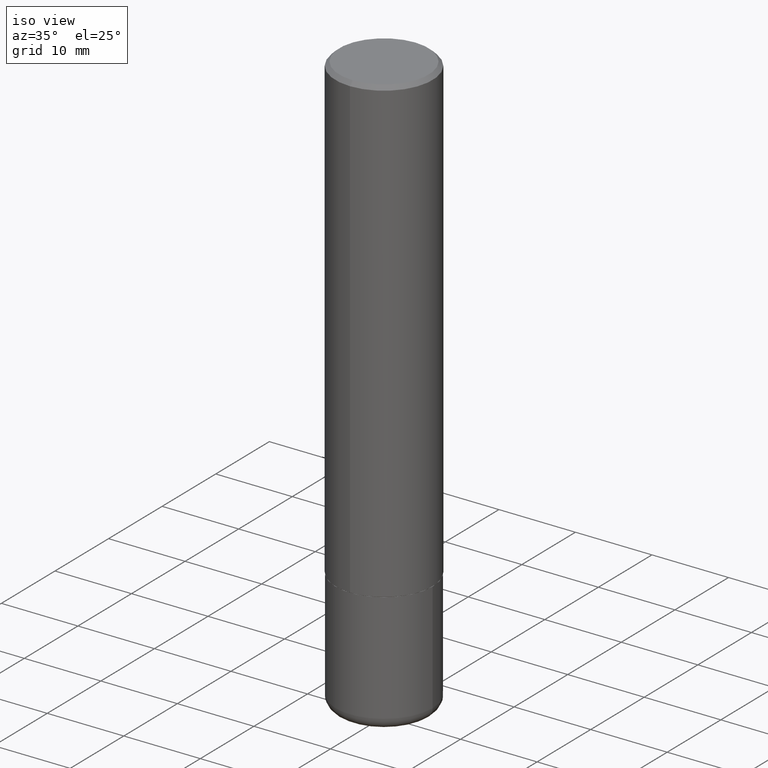
[diagram: clean part render]
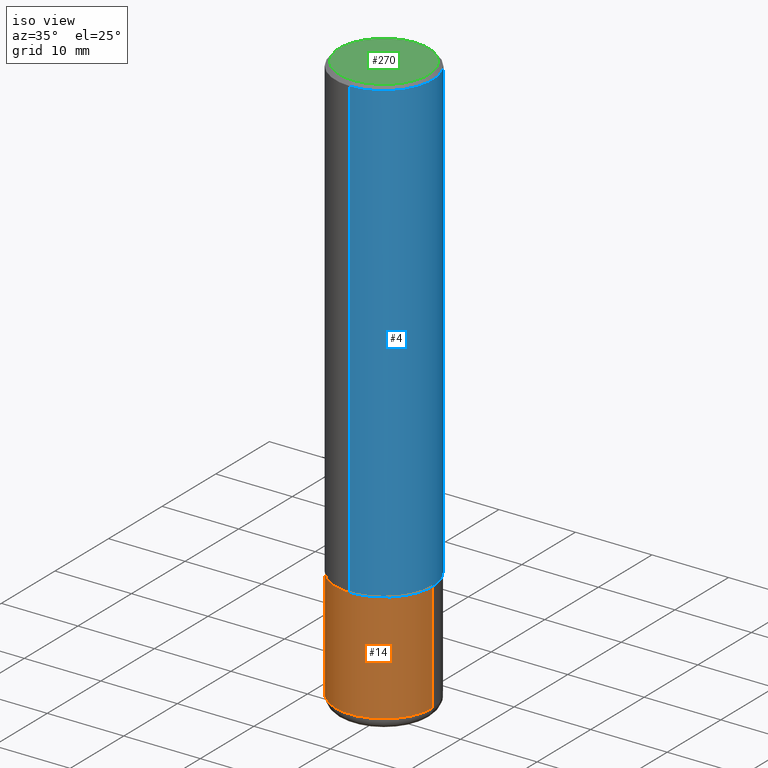
[diagram: same view with three faces highlighted in distinct colors, each labeled with its STEP entity id]
A machine part, iso view with three faces highlighted in distinct colors.
Their STEP definitions:

[orange] entity #14 — the highlighted cylindrical surface (partial cylindrical patch) has radius 6.35 mm, axis along (-0, 0, 1).
#2 = DIRECTION ( 'NONE',  ( -2.445468806185136597E-29, 3.491481338843145583E-15, 1.000000000000000000 ) ) ;
#14 = ADVANCED_FACE ( 'NONE', ( #229 ), #253, .T. ) ;
#62 = VECTOR ( 'NONE', #131, 39.37007874015748143 ) ;
#74 = VERTEX_POINT ( 'NONE', #82 ) ;
#78 = DIRECTION ( 'NONE',  ( 1.000000000000000000, -6.982962677686266711E-15, 0.000000000000000000 ) ) ;
#82 = CARTESIAN_POINT ( 'NONE',  ( 0.2500000000000000000, -1.003800884917403837E-14, -2.375000000000000000 ) ) ;
#90 = AXIS2_PLACEMENT_3D ( 'NONE', #294, #250, #176 ) ;
#94 = VERTEX_POINT ( 'NONE', #391 ) ;
#96 = EDGE_CURVE ( 'NONE', #94, #204, #159, .T. ) ;
#108 = CARTESIAN_POINT ( 'NONE',  ( 0.2499999999999999722, -1.201069580562041471E-14, -2.940000000000000391 ) ) ;
#125 = VERTEX_POINT ( 'NONE', #366 ) ;
#127 = DIRECTION ( 'NONE',  ( 1.000000000000000000, -6.982962677686262766E-15, 0.000000000000000000 ) ) ;
#131 = DIRECTION ( 'NONE',  ( -2.445468806185136877E-29, 3.491481338843145188E-15, 1.000000000000000000 ) ) ;
#132 = EDGE_CURVE ( 'NONE', #94, #125, #312, .T. ) ;
#141 = CARTESIAN_POINT ( 'NONE',  ( -0.2500000000000000000, 1.776356839400250465E-15, -1.229733772563726445E-29 ) ) ;
#154 = CARTESIAN_POINT ( 'NONE',  ( 7.189678290184301639E-29, -1.026495513619884961E-14, -2.940000000000000391 ) ) ;
#159 = CIRCLE ( 'NONE', #180, 0.2500000000000000000 ) ;
#166 = DIRECTION ( 'NONE',  ( -2.445468806185136597E-29, 3.491481338843145583E-15, 1.000000000000000000 ) ) ;
#176 = DIRECTION ( 'NONE',  ( 1.000000000000000000, -6.982962677686266711E-15, 4.876176775795935793E-29 ) ) ;
#179 = ORIENTED_EDGE ( 'NONE', *, *, #351, .T. ) ;
#180 = AXIS2_PLACEMENT_3D ( 'NONE', #154, #2, #127 ) ;
#204 = VERTEX_POINT ( 'NONE', #108 ) ;
#219 = DIRECTION ( 'NONE',  ( -2.445468806185136877E-29, 3.491481338843145188E-15, 1.000000000000000000 ) ) ;
#229 = FACE_OUTER_BOUND ( 'NONE', #386, .T. ) ;
#250 = DIRECTION ( 'NONE',  ( -2.445468806185136597E-29, 3.491481338843145583E-15, 1.000000000000000000 ) ) ;
#253 = CYLINDRICAL_SURFACE ( 'NONE', #90, 0.2500000000000000000 ) ;
#256 = EDGE_CURVE ( 'NONE', #125, #74, #279, .T. ) ;
#264 = VECTOR ( 'NONE', #219, 39.37007874015748143 ) ;
#276 = CARTESIAN_POINT ( 'NONE',  ( 5.807988414689700538E-29, -8.292268179752471696E-15, -2.375000000000000000 ) ) ;
#279 = CIRCLE ( 'NONE', #328, 0.2500000000000000000 ) ;
#292 = ORIENTED_EDGE ( 'NONE', *, *, #132, .F. ) ;
#294 = CARTESIAN_POINT ( 'NONE',  ( 0.000000000000000000, 0.000000000000000000, 0.000000000000000000 ) ) ;
#312 = LINE ( 'NONE', #141, #62 ) ;
#328 = AXIS2_PLACEMENT_3D ( 'NONE', #276, #166, #78 ) ;
#348 = CARTESIAN_POINT ( 'NONE',  ( 0.2500000000000000000, -1.745740669421566678E-15, 1.219044193948983948E-29 ) ) ;
#351 = EDGE_CURVE ( 'NONE', #204, #74, #377, .T. ) ;
#353 = ORIENTED_EDGE ( 'NONE', *, *, #96, .T. ) ;
#366 = CARTESIAN_POINT ( 'NONE',  ( -0.2500000000000000000, -7.502254818575409401E-15, -2.375000000000000000 ) ) ;
#377 = LINE ( 'NONE', #348, #264 ) ;
#386 = EDGE_LOOP ( 'NONE', ( #292, #353, #179, #416 ) ) ;
#391 = CARTESIAN_POINT ( 'NONE',  ( -0.2499999999999999722, -8.488598296798599150E-15, -2.940000000000000391 ) ) ;
#416 = ORIENTED_EDGE ( 'NONE', *, *, #256, .F. ) ;

[blue] entity #4 — the highlighted cylindrical surface (partial cylindrical patch) has radius 6.35 mm, axis along (-0, 0, 1).
#4 = ADVANCED_FACE ( 'NONE', ( #350 ), #411, .T. ) ;
#8 = VERTEX_POINT ( 'NONE', #317 ) ;
#12 = DIRECTION ( 'NONE',  ( -6.982962677686265922E-15, -1.000000000000000000, 3.483106191921935554E-15 ) ) ;
#20 = CARTESIAN_POINT ( 'NONE',  ( 4.891459535375212615E-31, -6.982215254237243146E-17, -0.02000000000000005593 ) ) ;
#22 = AXIS2_PLACEMENT_3D ( 'NONE', #20, #398, #12 ) ;
#25 = AXIS2_PLACEMENT_3D ( 'NONE', #383, #360, #55 ) ;
#33 = EDGE_CURVE ( 'NONE', #53, #225, #61, .T. ) ;
#52 = DIRECTION ( 'NONE',  ( -2.445729767687599458E-29, 3.491107627118612255E-15, 1.000000000000000000 ) ) ;
#53 = VERTEX_POINT ( 'NONE', #287 ) ;
#55 = DIRECTION ( 'NONE',  ( -6.982962677686265922E-15, -1.000000000000000000, 3.278217592397112312E-15 ) ) ;
#61 = CIRCLE ( 'NONE', #25, 0.2500000000000002776 ) ;
#99 = ORIENTED_EDGE ( 'NONE', *, *, #33, .T. ) ;
#112 = CARTESIAN_POINT ( 'NONE',  ( 1.776356839400251254E-15, 0.2500000000000001110, -8.727769067796535567E-16 ) ) ;
#116 = DIRECTION ( 'NONE',  ( -6.982962677686266711E-15, -1.000000000000000000, 3.491107627118612649E-15 ) ) ;
#117 = LINE ( 'NONE', #112, #323 ) ;
#118 = CARTESIAN_POINT ( 'NONE',  ( 0.000000000000000000, 0.000000000000000000, 0.000000000000000000 ) ) ;
#120 = VERTEX_POINT ( 'NONE', #374 ) ;
#123 = ORIENTED_EDGE ( 'NONE', *, *, #338, .T. ) ;
#144 = CIRCLE ( 'NONE', #22, 0.2500000000000000000 ) ;
#147 = CARTESIAN_POINT ( 'NONE',  ( -1.745740669421567467E-15, -0.2500000000000001110, 8.727769067796535567E-16 ) ) ;
#175 = DIRECTION ( 'NONE',  ( -2.445729767687599458E-29, 3.491107627118612649E-15, 1.000000000000000000 ) ) ;
#201 = ORIENTED_EDGE ( 'NONE', *, *, #277, .F. ) ;
#225 = VERTEX_POINT ( 'NONE', #329 ) ;
#226 = AXIS2_PLACEMENT_3D ( 'NONE', #118, #52, #116 ) ;
#272 = VECTOR ( 'NONE', #380, 39.37007874015748143 ) ;
#273 = ORIENTED_EDGE ( 'NONE', *, *, #320, .F. ) ;
#277 = EDGE_CURVE ( 'NONE', #8, #120, #144, .T. ) ;
#282 = LINE ( 'NONE', #147, #272 ) ;
#287 = CARTESIAN_POINT ( 'NONE',  ( -1.745740669421510471E-15, -0.2500000000000085487, -2.373999999999999222 ) ) ;
#317 = CARTESIAN_POINT ( 'NONE',  ( -1.715124499442882299E-15, -0.2500000000000000555, -0.01999999999999918510 ) ) ;
#320 = EDGE_CURVE ( 'NONE', #53, #8, #282, .T. ) ;
#323 = VECTOR ( 'NONE', #175, 39.37007874015748143 ) ;
#329 = CARTESIAN_POINT ( 'NONE',  ( 1.776356839400280836E-15, 0.2499999999999919786, -2.374000000000000998 ) ) ;
#338 = EDGE_CURVE ( 'NONE', #225, #120, #117, .T. ) ;
#350 = FACE_OUTER_BOUND ( 'NONE', #402, .T. ) ;
#360 = DIRECTION ( 'NONE',  ( -2.445729767687599458E-29, 3.491107627118612255E-15, 1.000000000000000000 ) ) ;
#374 = CARTESIAN_POINT ( 'NONE',  ( 1.745740669421566875E-15, 0.2499999999999999167, -0.02000000000000092676 ) ) ;
#380 = DIRECTION ( 'NONE',  ( -2.445729767687599458E-29, 3.491107627118612649E-15, 1.000000000000000000 ) ) ;
#383 = CARTESIAN_POINT ( 'NONE',  ( 5.806162468490361962E-29, -8.287889506779587323E-15, -2.374000000000000110 ) ) ;
#398 = DIRECTION ( 'NONE',  ( -2.445729767687599458E-29, 3.491107627118612255E-15, 1.000000000000000000 ) ) ;
#402 = EDGE_LOOP ( 'NONE', ( #99, #123, #201, #273 ) ) ;
#411 = CYLINDRICAL_SURFACE ( 'NONE', #226, 0.2500000000000001110 ) ;

[green] entity #270 — the highlighted planar face has unit normal (0, -0, -1).
#70 = CARTESIAN_POINT ( 'NONE',  ( -3.025389942482403152E-45, 4.318531852026494479E-31, 1.237009085162692923E-16 ) ) ;
#76 = DIRECTION ( 'NONE',  ( -2.445729767687599458E-29, 3.491107627118612255E-15, 1.000000000000000000 ) ) ;
#87 = ORIENTED_EDGE ( 'NONE', *, *, #158, .T. ) ;
#98 = DIRECTION ( 'NONE',  ( 6.982962677686265922E-15, 1.000000000000000000, -3.491107627118612649E-15 ) ) ;
#100 = CIRCLE ( 'NONE', #358, 0.2299999999999998712 ) ;
#135 = CARTESIAN_POINT ( 'NONE',  ( -1.646519519465166573E-15, -0.2299999999999998712, 9.266556627535495054E-16 ) ) ;
#143 = FACE_OUTER_BOUND ( 'NONE', #258, .T. ) ;
#158 = EDGE_CURVE ( 'NONE', #236, #288, #100, .T. ) ;
#174 = AXIS2_PLACEMENT_3D ( 'NONE', #70, #76, #238 ) ;
#205 = EDGE_CURVE ( 'NONE', #288, #236, #245, .T. ) ;
#234 = DIRECTION ( 'NONE',  ( -6.982962677686265922E-15, -1.000000000000000000, 3.491107627118611860E-15 ) ) ;
#236 = VERTEX_POINT ( 'NONE', #340 ) ;
#238 = DIRECTION ( 'NONE',  ( -6.982962677686265922E-15, -1.000000000000000000, 3.491107627118611860E-15 ) ) ;
#245 = CIRCLE ( 'NONE', #174, 0.2299999999999998712 ) ;
#258 = EDGE_LOOP ( 'NONE', ( #87, #322 ) ) ;
#267 = CARTESIAN_POINT ( 'NONE',  ( 1.606081415867840278E-15, 0.2299999999999998712, -7.411042999791457395E-16 ) ) ;
#270 = ADVANCED_FACE ( 'NONE', ( #143 ), #309, .F. ) ;
#275 = DIRECTION ( 'NONE',  ( -2.445729767687599458E-29, 3.491107627118612255E-15, 1.000000000000000000 ) ) ;
#288 = VERTEX_POINT ( 'NONE', #135 ) ;
#309 = PLANE ( 'NONE',  #381 ) ;
#322 = ORIENTED_EDGE ( 'NONE', *, *, #205, .T. ) ;
#340 = CARTESIAN_POINT ( 'NONE',  ( 1.675911042644703577E-15, 0.2299999999999998712, -6.792538457210110194E-16 ) ) ;
#343 = CARTESIAN_POINT ( 'NONE',  ( -3.025389942482403152E-45, 4.318531852026494479E-31, 1.237009085162692923E-16 ) ) ;
#358 = AXIS2_PLACEMENT_3D ( 'NONE', #343, #275, #234 ) ;
#381 = AXIS2_PLACEMENT_3D ( 'NONE', #267, #406, #98 ) ;
#406 = DIRECTION ( 'NONE',  ( 2.445729767687598898E-29, -3.491107627118612649E-15, -1.000000000000000000 ) ) ;